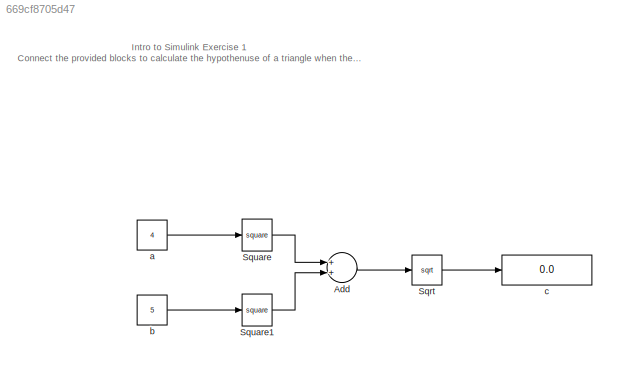
MODEL slx_669cf8705d47
KIND model
CONFIG AbsTol = auto
CONFIG EnableMultiTasking = off
CONFIG FixedStep = auto
CONFIG MaxStep = auto
CONFIG MinStep = auto
CONFIG RelTol = 1e-3
CONFIG SampleTimeConstraint = Unconstrained
CONFIG Solver = VariableStepAuto
CONFIG SolverName = VariableStepAuto
CONFIG StartTime = 0.0
CONFIG StopTime = 10.0
BLOCK [Sum] Add
  InputSameDT = off
  OutDataTypeStr = Inherit: Inherit via internal rule
  Ports = [2, 1]
  SaturateOnIntegerOverflow = off
BLOCK [Sqrt] Sqrt
BLOCK [Math] Square
  Operator = square
  Ports = [1, 1]
BLOCK [Math] Square1
  Operator = square
  Ports = [1, 1]
BLOCK [Constant] a
  Value = 4
BLOCK [Constant] b
  Value = 5
BLOCK [Display] c
  Decimation = 1
  Ports = [1]
ANNOTATION (root): Intro to Simulink Exercise 1 Connect the provided blocks to calculate the hypothenuse of a triangle when the length of its sides correspond to "a" and "b"
LINE Add:1 -> Sqrt:1
LINE Sqrt:1 -> c:1
LINE Square1:1 -> Add:2
LINE Square:1 -> Add:1
LINE a:1 -> Square:1
LINE b:1 -> Square1:1
